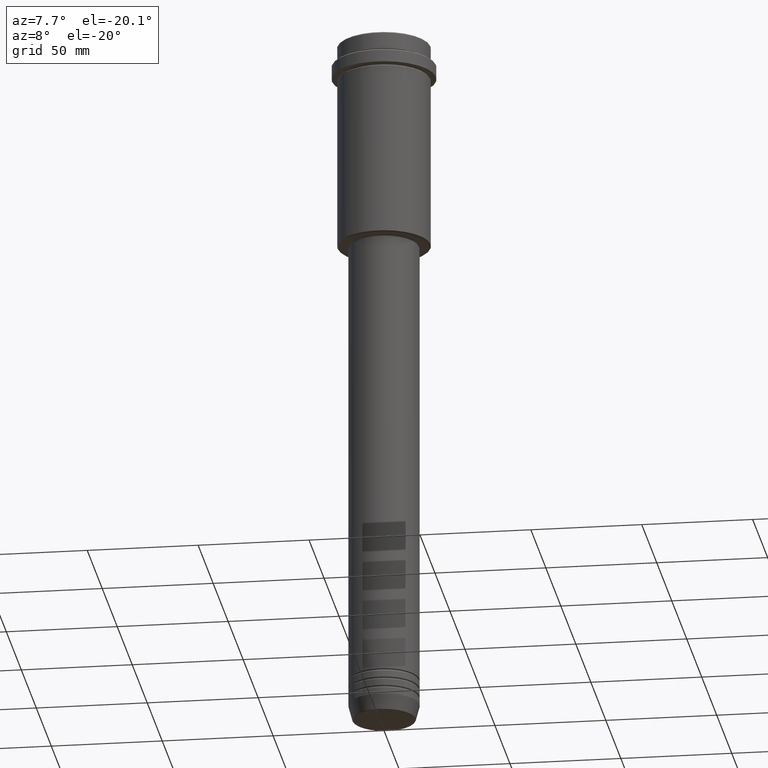
[diagram: clean part render]
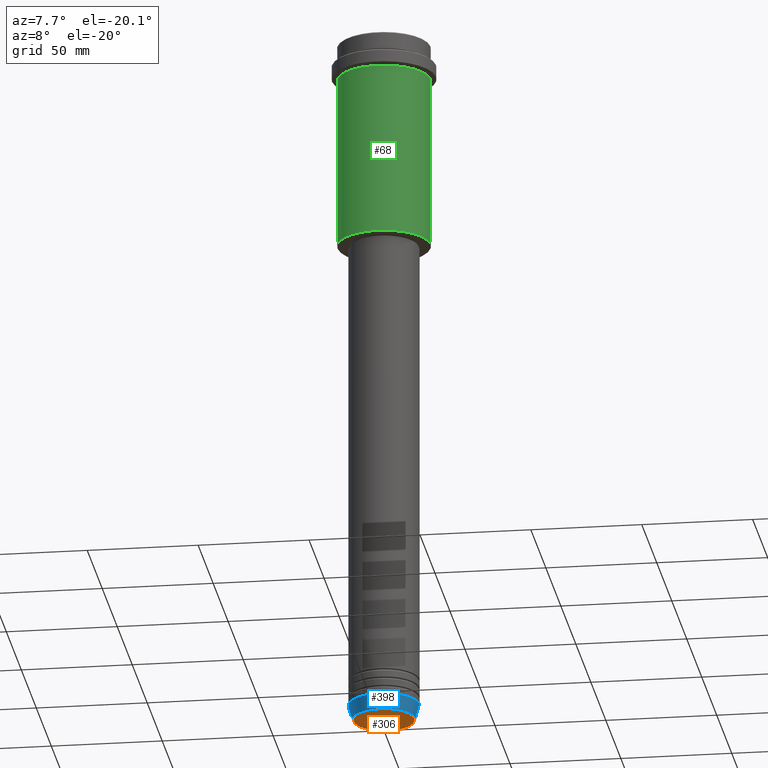
[diagram: same view with three faces highlighted in distinct colors, each labeled with its STEP entity id]
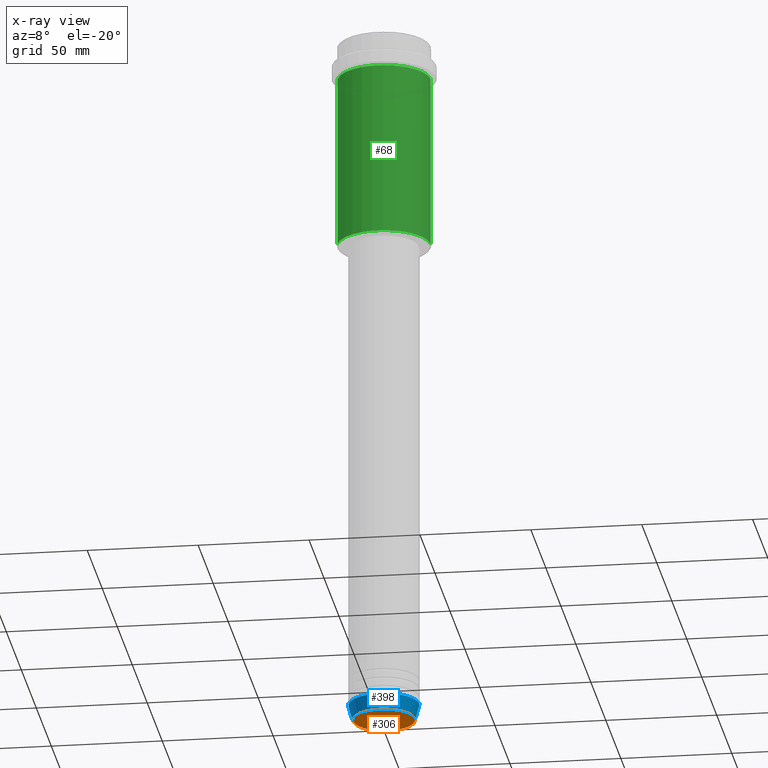
[diagram: x-ray of the same camera — body ghosted, the three highlighted faces saturated]
A machine part, auxiliary view with three faces highlighted in distinct colors.
The next image is the same camera in x-ray (body ghosted, the three faces saturated) — at least one of them is partly hidden behind the body in this view.
Their STEP definitions:

[orange] entity #306 — the highlighted planar face has unit normal (0, -0, 1).
#22 = FACE_OUTER_BOUND ( 'NONE', #434, .T. ) ;
#104 = EDGE_CURVE ( 'NONE', #783, #271, #1377, .T. ) ;
#197 = CIRCLE ( 'NONE', #1336, 13.74069215899265828 ) ;
#211 = CARTESIAN_POINT ( 'NONE',  ( 0.000000000000000000, 0.000000000000000000, -320.0000000000000000 ) ) ;
#219 = DIRECTION ( 'NONE',  ( 0.000000000000000000, 0.000000000000000000, -1.000000000000000000 ) ) ;
#271 = VERTEX_POINT ( 'NONE', #927 ) ;
#306 = ADVANCED_FACE ( 'NONE', ( #22 ), #1225, .F. ) ;
#347 = ORIENTED_EDGE ( 'NONE', *, *, #1015, .T. ) ;
#434 = EDGE_LOOP ( 'NONE', ( #347, #733 ) ) ;
#446 = CARTESIAN_POINT ( 'NONE',  ( 0.000000000000000000, 0.000000000000000000, -320.0000000000000000 ) ) ;
#491 = CARTESIAN_POINT ( 'NONE',  ( 0.000000000000000000, 0.000000000000000000, -320.0000000000000000 ) ) ;
#522 = CARTESIAN_POINT ( 'NONE',  ( -13.74069215899265828, 1.712322416342415986E-15, -320.0000000000000000 ) ) ;
#691 = DIRECTION ( 'NONE',  ( 1.000000000000000000, 0.000000000000000000, 0.000000000000000000 ) ) ;
#733 = ORIENTED_EDGE ( 'NONE', *, *, #104, .T. ) ;
#772 = DIRECTION ( 'NONE',  ( 0.000000000000000000, 0.000000000000000000, -1.000000000000000000 ) ) ;
#776 = DIRECTION ( 'NONE',  ( 1.000000000000000000, 0.000000000000000000, 0.000000000000000000 ) ) ;
#783 = VERTEX_POINT ( 'NONE', #522 ) ;
#788 = AXIS2_PLACEMENT_3D ( 'NONE', #446, #772, #691 ) ;
#927 = CARTESIAN_POINT ( 'NONE',  ( 13.74069215899265828, 0.000000000000000000, -320.0000000000000000 ) ) ;
#991 = DIRECTION ( 'NONE',  ( 1.000000000000000000, 0.000000000000000000, 0.000000000000000000 ) ) ;
#999 = DIRECTION ( 'NONE',  ( 0.000000000000000000, -0.000000000000000000, 1.000000000000000000 ) ) ;
#1015 = EDGE_CURVE ( 'NONE', #271, #783, #197, .T. ) ;
#1031 = AXIS2_PLACEMENT_3D ( 'NONE', #491, #999, #776 ) ;
#1225 = PLANE ( 'NONE',  #1031 ) ;
#1336 = AXIS2_PLACEMENT_3D ( 'NONE', #211, #219, #991 ) ;
#1377 = CIRCLE ( 'NONE', #788, 13.74069215899265828 ) ;

[blue] entity #398 — the highlighted conical surface has half-angle 15 deg.
#63 = CARTESIAN_POINT ( 'NONE',  ( -14.22365507213718772, 1.850665122131323337E-15, -319.6294095225512706 ) ) ;
#65 = DIRECTION ( 'NONE',  ( -0.2588190451025213501, 3.169619151431772337E-17, 0.9659258262890680902 ) ) ;
#83 = EDGE_CURVE ( 'NONE', #405, #467, #626, .T. ) ;
#88 = ORIENTED_EDGE ( 'NONE', *, *, #943, .F. ) ;
#100 = DIRECTION ( 'NONE',  ( -0.000000000000000000, -0.000000000000000000, 1.000000000000000000 ) ) ;
#154 = ORIENTED_EDGE ( 'NONE', *, *, #83, .F. ) ;
#294 = LINE ( 'NONE', #1164, #517 ) ;
#331 = AXIS2_PLACEMENT_3D ( 'NONE', #959, #1404, #1153 ) ;
#344 = CARTESIAN_POINT ( 'NONE',  ( 0.000000000000000000, 0.000000000000000000, -313.0000000000000000 ) ) ;
#345 = CARTESIAN_POINT ( 'NONE',  ( -16.00000000000000000, 1.959434878635765131E-15, -313.0000000000000000 ) ) ;
#398 = ADVANCED_FACE ( 'NONE', ( #538 ), #982, .T. ) ;
#405 = VERTEX_POINT ( 'NONE', #63 ) ;
#467 = VERTEX_POINT ( 'NONE', #345 ) ;
#517 = VECTOR ( 'NONE', #750, 1000.000000000000000 ) ;
#525 = CARTESIAN_POINT ( 'NONE',  ( 0.000000000000000000, 0.000000000000000000, -319.6294095225512706 ) ) ;
#538 = FACE_OUTER_BOUND ( 'NONE', #1047, .T. ) ;
#544 = AXIS2_PLACEMENT_3D ( 'NONE', #525, #1390, #945 ) ;
#569 = ORIENTED_EDGE ( 'NONE', *, *, #1330, .T. ) ;
#620 = VERTEX_POINT ( 'NONE', #695 ) ;
#626 = LINE ( 'NONE', #1043, #1331 ) ;
#695 = CARTESIAN_POINT ( 'NONE',  ( 16.00000000000000000, 0.000000000000000000, -313.0000000000000000 ) ) ;
#726 = CIRCLE ( 'NONE', #1058, 16.00000000000000000 ) ;
#750 = DIRECTION ( 'NONE',  ( 0.2588190451025213501, 0.000000000000000000, 0.9659258262890680902 ) ) ;
#867 = VERTEX_POINT ( 'NONE', #1402 ) ;
#872 = EDGE_CURVE ( 'NONE', #867, #620, #294, .T. ) ;
#943 = EDGE_CURVE ( 'NONE', #467, #620, #726, .T. ) ;
#945 = DIRECTION ( 'NONE',  ( 1.000000000000000000, 0.000000000000000000, 0.000000000000000000 ) ) ;
#959 = CARTESIAN_POINT ( 'NONE',  ( 0.000000000000000000, 0.000000000000000000, -313.0000000000000000 ) ) ;
#982 = CONICAL_SURFACE ( 'NONE', #331, 16.00000000000000000, 0.2617993877991500740 ) ;
#1043 = CARTESIAN_POINT ( 'NONE',  ( -16.00000000000000000, 1.959434878635765131E-15, -313.0000000000000000 ) ) ;
#1047 = EDGE_LOOP ( 'NONE', ( #154, #569, #1409, #88 ) ) ;
#1058 = AXIS2_PLACEMENT_3D ( 'NONE', #344, #100, #1215 ) ;
#1153 = DIRECTION ( 'NONE',  ( 1.000000000000000000, 0.000000000000000000, 0.000000000000000000 ) ) ;
#1164 = CARTESIAN_POINT ( 'NONE',  ( 16.00000000000000000, 0.000000000000000000, -313.0000000000000000 ) ) ;
#1215 = DIRECTION ( 'NONE',  ( 1.000000000000000000, 0.000000000000000000, 0.000000000000000000 ) ) ;
#1224 = CIRCLE ( 'NONE', #544, 14.22365507213718772 ) ;
#1330 = EDGE_CURVE ( 'NONE', #405, #867, #1224, .T. ) ;
#1331 = VECTOR ( 'NONE', #65, 1000.000000000000000 ) ;
#1390 = DIRECTION ( 'NONE',  ( -0.000000000000000000, -0.000000000000000000, 1.000000000000000000 ) ) ;
#1402 = CARTESIAN_POINT ( 'NONE',  ( 14.22365507213718772, 0.000000000000000000, -319.6294095225512706 ) ) ;
#1404 = DIRECTION ( 'NONE',  ( -0.000000000000000000, -0.000000000000000000, 1.000000000000000000 ) ) ;
#1409 = ORIENTED_EDGE ( 'NONE', *, *, #872, .T. ) ;

[green] entity #68 — the highlighted cylindrical surface (partial cylindrical patch) has radius 21 mm, axis along (-0, -0, 1).
#18 = DIRECTION ( 'NONE',  ( -0.000000000000000000, -0.000000000000000000, 1.000000000000000000 ) ) ;
#68 = ADVANCED_FACE ( 'NONE', ( #401 ), #1154, .T. ) ;
#106 = EDGE_CURVE ( 'NONE', #1304, #950, #764, .T. ) ;
#141 = DIRECTION ( 'NONE',  ( -1.000000000000000000, 0.000000000000000000, 0.000000000000000000 ) ) ;
#177 = CARTESIAN_POINT ( 'NONE',  ( 0.000000000000000000, 0.000000000000000000, 0.000000000000000000 ) ) ;
#184 = CARTESIAN_POINT ( 'NONE',  ( -21.00000000000000000, 2.571758278209441661E-15, 0.000000000000000000 ) ) ;
#246 = DIRECTION ( 'NONE',  ( -0.000000000000000000, -0.000000000000000000, 1.000000000000000000 ) ) ;
#319 = ORIENTED_EDGE ( 'NONE', *, *, #606, .F. ) ;
#359 = EDGE_CURVE ( 'NONE', #1304, #958, #1371, .T. ) ;
#401 = FACE_OUTER_BOUND ( 'NONE', #668, .T. ) ;
#429 = CARTESIAN_POINT ( 'NONE',  ( 21.00000000000000000, 0.000000000000000000, -94.49999999999992895 ) ) ;
#470 = EDGE_CURVE ( 'NONE', #950, #1071, #548, .T. ) ;
#484 = DIRECTION ( 'NONE',  ( -0.000000000000000000, -0.000000000000000000, 1.000000000000000000 ) ) ;
#548 = LINE ( 'NONE', #1218, #793 ) ;
#597 = AXIS2_PLACEMENT_3D ( 'NONE', #807, #1234, #1131 ) ;
#606 = EDGE_CURVE ( 'NONE', #958, #1071, #1245, .T. ) ;
#622 = DIRECTION ( 'NONE',  ( 1.000000000000000000, 0.000000000000000000, 0.000000000000000000 ) ) ;
#668 = EDGE_LOOP ( 'NONE', ( #757, #916, #729, #319 ) ) ;
#705 = AXIS2_PLACEMENT_3D ( 'NONE', #1120, #246, #141 ) ;
#729 = ORIENTED_EDGE ( 'NONE', *, *, #470, .T. ) ;
#746 = CARTESIAN_POINT ( 'NONE',  ( -21.00000000000000000, 2.571758278209441661E-15, -94.49999999999992895 ) ) ;
#756 = CARTESIAN_POINT ( 'NONE',  ( -21.00000000000000000, 2.571758278209441661E-15, -16.00000000000000355 ) ) ;
#757 = ORIENTED_EDGE ( 'NONE', *, *, #359, .F. ) ;
#764 = CIRCLE ( 'NONE', #705, 21.00000000000000000 ) ;
#793 = VECTOR ( 'NONE', #18, 1000.000000000000000 ) ;
#807 = CARTESIAN_POINT ( 'NONE',  ( 0.000000000000000000, 0.000000000000000000, -16.00000000000000355 ) ) ;
#890 = CARTESIAN_POINT ( 'NONE',  ( 21.00000000000000000, 0.000000000000000000, -16.00000000000000355 ) ) ;
#916 = ORIENTED_EDGE ( 'NONE', *, *, #106, .T. ) ;
#950 = VERTEX_POINT ( 'NONE', #429 ) ;
#958 = VERTEX_POINT ( 'NONE', #756 ) ;
#1071 = VERTEX_POINT ( 'NONE', #890 ) ;
#1120 = CARTESIAN_POINT ( 'NONE',  ( 0.000000000000000000, 0.000000000000000000, -94.49999999999992895 ) ) ;
#1131 = DIRECTION ( 'NONE',  ( 1.000000000000000000, 0.000000000000000000, 0.000000000000000000 ) ) ;
#1154 = CYLINDRICAL_SURFACE ( 'NONE', #1308, 21.00000000000000000 ) ;
#1168 = VECTOR ( 'NONE', #484, 1000.000000000000000 ) ;
#1218 = CARTESIAN_POINT ( 'NONE',  ( 21.00000000000000000, 0.000000000000000000, 0.000000000000000000 ) ) ;
#1234 = DIRECTION ( 'NONE',  ( -0.000000000000000000, -0.000000000000000000, 1.000000000000000000 ) ) ;
#1245 = CIRCLE ( 'NONE', #597, 21.00000000000000000 ) ;
#1304 = VERTEX_POINT ( 'NONE', #746 ) ;
#1308 = AXIS2_PLACEMENT_3D ( 'NONE', #177, #1363, #622 ) ;
#1363 = DIRECTION ( 'NONE',  ( -0.000000000000000000, -0.000000000000000000, 1.000000000000000000 ) ) ;
#1371 = LINE ( 'NONE', #184, #1168 ) ;